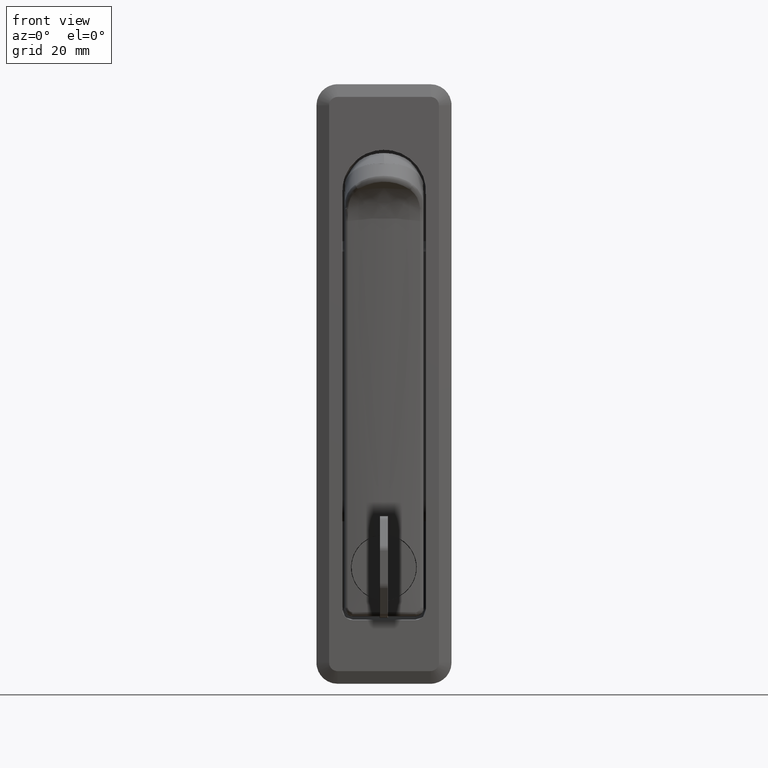
[diagram: clean part render]
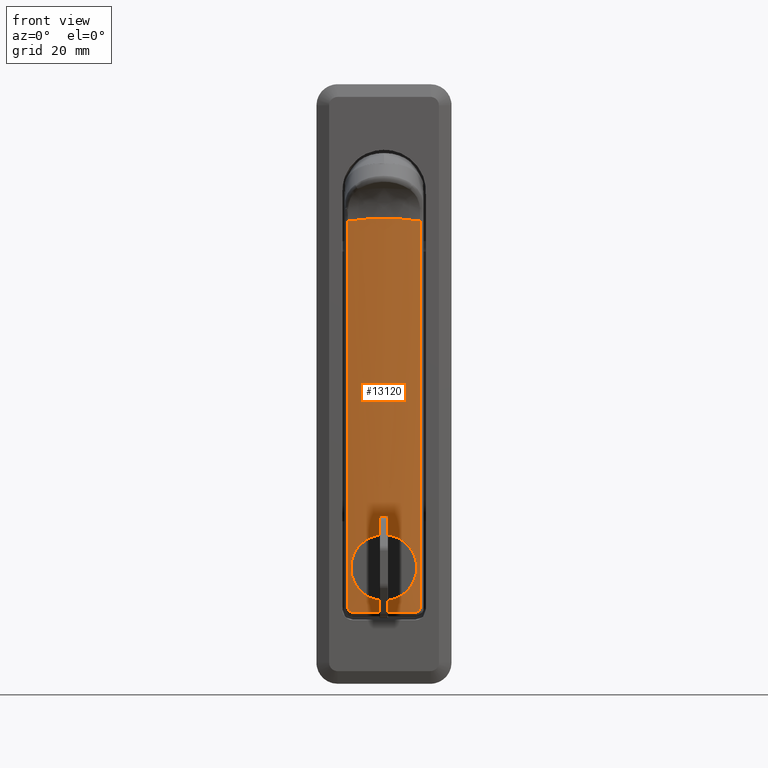
[diagram: same view with one face highlighted and labeled with its STEP entity id]
A machine part, front view. The second image highlights one B-rep face of the part: STEP entity #13120.
In plain terms, the highlighted face is a freeform B-spline surface patch.
Its self-contained STEP definition (entity closure, byte-faithful):
#8791=CARTESIAN_POINT('',(-3.484622368265870,7.847327941141425,-89.204189128046096));
#8792=VERTEX_POINT('',#8791);
#8798=CARTESIAN_POINT('',(-3.999979489759161,0.047630900839474,-96.799999640215958));
#8799=VERTEX_POINT('',#8798);
#8800=CARTESIAN_POINT('',(-3.999979489759161,0.047630900839474,-96.799999640215958));
#8801=CARTESIAN_POINT('',(-3.999575476099300,0.556918790600103,-96.800154324691647));
#8802=CARTESIAN_POINT('',(-3.992689937410454,1.063465663019250,-96.750910845993076));
#8803=CARTESIAN_POINT('',(-3.976237598259020,1.693139855598237,-96.626045773703353));
#8804=CARTESIAN_POINT('',(-3.972543774229130,1.819195516857935,-96.597791983833659));
#8805=CARTESIAN_POINT('',(-3.964466810858760,2.068385790896737,-96.535423971928125));
#8806=CARTESIAN_POINT('',(-3.960079643898423,2.191748797807247,-96.501280259332503));
#8807=CARTESIAN_POINT('',(-3.945936746043362,2.558211175732474,-96.390132116574534));
#8808=CARTESIAN_POINT('',(-3.924463487981357,3.037173729923115,-96.218730780905332));
#8809=CARTESIAN_POINT('',(-3.898422411084221,3.497138854994351,-96.001597975587373));
#8810=CARTESIAN_POINT('',(-3.877428107797999,3.834898998733452,-95.821350493473361));
#8811=CARTESIAN_POINT('',(-3.870186135866973,3.946281299804413,-95.758363157938263));
#8812=CARTESIAN_POINT('',(-3.855257344717984,4.166595156451687,-95.626471497187680));
#8813=CARTESIAN_POINT('',(-3.847567375594058,4.275541436238399,-95.557530275916037));
#8814=CARTESIAN_POINT('',(-3.808566166796603,4.808133908789353,-95.201828098744954));
#8815=CARTESIAN_POINT('',(-3.775279927959337,5.200651512762677,-94.879563312174668));
#8816=CARTESIAN_POINT('',(-3.725044630588524,5.740386245080254,-94.340797507818834));
#8817=CARTESIAN_POINT('',(-3.708246989227406,5.912064933820499,-94.151913993550068));
#8818=CARTESIAN_POINT('',(-3.683334426995745,6.156843166060795,-93.854169987714641));
#8819=CARTESIAN_POINT('',(-3.675100938675703,6.236074241721129,-93.752772461976377));
#8820=CARTESIAN_POINT('',(-3.658962882622657,6.388619934873823,-93.547335200532743));
#8821=CARTESIAN_POINT('',(-3.651038741802410,6.462127610004147,-93.443063732551437));
#8822=CARTESIAN_POINT('',(-3.612272791295083,6.816051968648603,-92.914052212612731));
#8823=CARTESIAN_POINT('',(-3.583992960197298,7.056020995094870,-92.466569936056061));
#8824=CARTESIAN_POINT('',(-3.554115930381062,7.301391551336029,-91.876395120361849));
#8825=CARTESIAN_POINT('',(-3.548414504929670,7.347711293669010,-91.756805174208836));
#8826=CARTESIAN_POINT('',(-3.537613745501453,7.434722705123113,-91.514445268320529));
#8827=CARTESIAN_POINT('',(-3.532545584411023,7.475163337545031,-91.392347357900903));
#8828=CARTESIAN_POINT('',(-3.518440927702450,7.586929604632837,-91.024904121282731));
#8829=CARTESIAN_POINT('',(-3.510474714073284,7.648961577755901,-90.777751556230172));
#8830=CARTESIAN_POINT('',(-3.497584055682651,7.748596219348340,-90.279153295335803));
#8831=CARTESIAN_POINT('',(-3.492659360202747,7.786198039713499,-90.027707458349354));
#8832=CARTESIAN_POINT('',(-3.486866519044244,7.830316079353080,-89.585357158971050));
#8833=CARTESIAN_POINT('',(-3.485282819211837,7.842324898271132,-89.395340216827378));
#8834=CARTESIAN_POINT('',(-3.484622368265870,7.847327941141425,-89.204189128046096));
#8835=B_SPLINE_CURVE_WITH_KNOTS('',3,(#8800,#8801,#8802,#8803,#8804,#8805,#8806,#8807,#8808,#8809,#8810,#8811,#8812,#8813,#8814,#8815,#8816,#8817,#8818,#8819,#8820,#8821,#8822,#8823,#8824,#8825,#8826,#8827,#8828,#8829,#8830,#8831,#8832,#8833,#8834),.UNSPECIFIED.,.F.,.U.,(4,2,2,2,1,2,2,2,2,2,2,2,2,2,2,2,2,4),(0.500000000000026,0.531250000000025,0.539062500000025,0.546875000000024,0.562500000000024,0.578125000000023,0.585937500000023,0.593750000000022,0.625000000000021,0.640625000000021,0.648437500000021,0.656250000000022,0.687500000000023,0.695312500000022,0.703125000000022,0.718750000000022,0.734375000000022,0.746003316946506),.UNSPECIFIED.);
#8836=EDGE_CURVE('',#8799,#8792,#8835,.T.);
#8838=CARTESIAN_POINT('',(-3.497720458881190,-7.747336529952283,-88.795819558683505));
#8839=VERTEX_POINT('',#8838);
#8840=CARTESIAN_POINT('',(-3.497720458881190,-7.747336529952283,-88.795819558683505));
#8841=CARTESIAN_POINT('',(-3.497493130825949,-7.749071434013142,-88.862478378826822));
#8842=CARTESIAN_POINT('',(-3.497376948249235,-7.749954900577907,-88.929186106810519));
#8843=CARTESIAN_POINT('',(-3.497355169894051,-7.750122287916641,-89.250582654423496));
#8844=CARTESIAN_POINT('',(-3.498962105463567,-7.737817609552157,-89.505937138826937));
#8845=CARTESIAN_POINT('',(-3.503035316371665,-7.706393610760752,-89.826051571737082));
#8846=CARTESIAN_POINT('',(-3.503954673233525,-7.699293228989120,-89.890203676987468));
#8847=CARTESIAN_POINT('',(-3.505989923611024,-7.683547538880779,-90.017964762992264));
#8848=CARTESIAN_POINT('',(-3.509338517416648,-7.657603993478316,-90.208929379760733));
#8849=CARTESIAN_POINT('',(-3.513555058924827,-7.624767285443698,-90.397887109627959));
#8850=CARTESIAN_POINT('',(-3.529455792817234,-7.500244596115176,-91.023361401460221));
#8851=CARTESIAN_POINT('',(-3.548082660045375,-7.352844969841165,-91.509833548552606));
#8852=CARTESIAN_POINT('',(-3.577446366957982,-7.108446875056539,-92.100464778605627));
#8853=CARTESIAN_POINT('',(-3.583622968857662,-7.056532637757919,-92.217710286900243));
#8854=CARTESIAN_POINT('',(-3.596549926986584,-6.946511361232626,-92.450405603985502));
#8855=CARTESIAN_POINT('',(-3.603266061493807,-6.888692148510928,-92.565224875255311));
#8856=CARTESIAN_POINT('',(-3.623997797630889,-6.707708956543892,-92.903685039019294));
#8857=CARTESIAN_POINT('',(-3.653265629900107,-6.445758949179145,-93.340296703767635));
#8858=CARTESIAN_POINT('',(-3.684874812757229,-6.143431352364988,-93.748273108999115));
#8859=CARTESIAN_POINT('',(-3.709123076059074,-5.901435531156156,-94.043465486964848));
#8860=CARTESIAN_POINT('',(-3.717296051370558,-5.818224010595815,-94.140061411817243));
#8861=CARTESIAN_POINT('',(-3.733765250613307,-5.646633635710159,-94.329601649986770));
#8862=CARTESIAN_POINT('',(-3.742070296081129,-5.558158585848290,-94.422642047528910));
#8863=CARTESIAN_POINT('',(-3.783663513825066,-5.103595918524801,-94.877505019362474));
#8864=CARTESIAN_POINT('',(-3.816324415295453,-4.710218373201758,-95.199855220472017));
#8865=CARTESIAN_POINT('',(-3.861687162887850,-4.077125847223304,-95.623540372503484));
#8866=CARTESIAN_POINT('',(-3.876205765428448,-3.858870657310274,-95.754720532374151));
#8867=CARTESIAN_POINT('',(-3.896741057954369,-3.520366262060924,-95.936054520841836));
#8868=CARTESIAN_POINT('',(-3.903393332856608,-3.405408491996868,-95.994045704581936));
#8869=CARTESIAN_POINT('',(-3.916155437823769,-3.172957571669399,-96.104158646100913));
#8870=CARTESIAN_POINT('',(-3.922247012695894,-3.055825549119328,-96.156127385552139));
#8871=CARTESIAN_POINT('',(-3.951175455810703,-2.465717398766893,-96.400834291416146));
#8872=CARTESIAN_POINT('',(-3.969423078308126,-1.979523016220165,-96.548595702349971));
#8873=CARTESIAN_POINT('',(-3.984844806175739,-1.354196998930587,-96.673623344311451));
#8874=CARTESIAN_POINT('',(-3.987559691696342,-1.228244803755599,-96.695618171851564));
#8875=CARTESIAN_POINT('',(-3.992217697001291,-0.974535575965874,-96.733484103166788));
#8876=CARTESIAN_POINT('',(-3.994164550405941,-0.846415181881548,-96.749386396605374));
#8877=CARTESIAN_POINT('',(-3.998763416026973,-0.462346805270546,-96.787406657543670));
#8878=CARTESIAN_POINT('',(-4.000181638511436,-0.207012912266040,-96.799922300914645));
#8879=CARTESIAN_POINT('',(-3.999979489759161,0.047630900839474,-96.799999640215958));
#8880=B_SPLINE_CURVE_WITH_KNOTS('',3,(#8840,#8841,#8842,#8843,#8844,#8845,#8846,#8847,#8848,#8849,#8850,#8851,#8852,#8853,#8854,#8855,#8856,#8857,#8858,#8859,#8860,#8861,#8862,#8863,#8864,#8865,#8866,#8867,#8868,#8869,#8870,#8871,#8872,#8873,#8874,#8875,#8876,#8877,#8878,#8879),.UNSPECIFIED.,.F.,.U.,(4,2,2,2,1,2,2,2,2,1,2,2,2,2,2,2,2,2,2,2,4),(0.245903747179580,0.250000000000030,0.265625000000031,0.269531250000032,0.273437500000032,0.281250000000033,0.312500000000033,0.320312500000032,0.328125000000032,0.343750000000031,0.359375000000031,0.367187500000031,0.375000000000031,0.406250000000029,0.421875000000029,0.429687500000028,0.437500000000028,0.468750000000027,0.476562500000027,0.484375000000026,0.500000000000026),.UNSPECIFIED.);
#8881=EDGE_CURVE('',#8839,#8799,#8880,.T.);
#8957=CARTESIAN_POINT('',(-3.999977562281145,0.050000000000015,-81.199999999999989));
#8958=VERTEX_POINT('',#8957);
#8959=CARTESIAN_POINT('',(-3.999977562281145,0.050000000000015,-81.199999999999989));
#8960=CARTESIAN_POINT('',(-4.000407470347692,-0.465889182496813,-81.200000008282615));
#8961=CARTESIAN_POINT('',(-3.994182523514549,-0.973054960242572,-81.250676128413645));
#8962=CARTESIAN_POINT('',(-3.975822210334713,-1.721277192110748,-81.399523816613325));
#8963=CARTESIAN_POINT('',(-3.968197176636839,-1.968581471022908,-81.461369340953325));
#8964=CARTESIAN_POINT('',(-3.954620125261481,-2.336315735190987,-81.572894517522826));
#8965=CARTESIAN_POINT('',(-3.949726734464367,-2.458610982674740,-81.613294299747679));
#8966=CARTESIAN_POINT('',(-3.939299075002887,-2.700912432715299,-81.700066513966490));
#8967=CARTESIAN_POINT('',(-3.933784978479890,-2.820493206319800,-81.746270760267365));
#8968=CARTESIAN_POINT('',(-3.904843779469896,-3.410713824558411,-81.991094762460065));
#8969=CARTESIAN_POINT('',(-3.877308412743851,-3.858523282329872,-82.230724838386067));
#8970=CARTESIAN_POINT('',(-3.839407655098960,-4.388205567496303,-82.584508788938720));
#8971=CARTESIAN_POINT('',(-3.831653387520570,-4.492624424209927,-82.658002636551586));
#8972=CARTESIAN_POINT('',(-3.815847695129808,-4.698380815603931,-82.810553885249362));
#8973=CARTESIAN_POINT('',(-3.807773337031291,-4.799992359088697,-82.889843718735690));
#8974=CARTESIAN_POINT('',(-3.783389465743470,-5.097621247808342,-83.134179258645375));
#8975=CARTESIAN_POINT('',(-3.766922988599670,-5.286513542208652,-83.305603773205291));
#8976=CARTESIAN_POINT('',(-3.717614351211520,-5.825502534746413,-83.844739750697229));
#8977=CARTESIAN_POINT('',(-3.684854635999316,-6.148178368504831,-84.237073233149829));
#8978=CARTESIAN_POINT('',(-3.646421082963382,-6.504561427376175,-84.769860913518286));
#8979=CARTESIAN_POINT('',(-3.638843967338877,-6.573615555012179,-84.878824547241436));
#8980=CARTESIAN_POINT('',(-3.624153993933055,-6.705548988891827,-85.098856134296810));
#8981=CARTESIAN_POINT('',(-3.617026522844245,-6.768569276720306,-85.210107508552611));
#8982=CARTESIAN_POINT('',(-3.596363210757144,-6.948946285528400,-85.547507031022619));
#8983=CARTESIAN_POINT('',(-3.570730058053409,-7.166333376583185,-86.007076949509255));
#8984=CARTESIAN_POINT('',(-3.549622780427670,-7.338101094402040,-86.485834247994646));
#8985=CARTESIAN_POINT('',(-3.535748232996119,-7.449548505726667,-86.852222920310695));
#8986=CARTESIAN_POINT('',(-3.531449492299458,-7.483796043792808,-86.975574763146753));
#8987=CARTESIAN_POINT('',(-3.523548916708182,-7.546376772908197,-87.224771424254243));
#8988=CARTESIAN_POINT('',(-3.519944679567929,-7.574728076710775,-87.350797793692010));
#8989=CARTESIAN_POINT('',(-3.505618364017040,-7.686922096863610,-87.914216212057426));
#8990=CARTESIAN_POINT('',(-3.499227399201893,-7.735836514982460,-88.353943315817233));
#8991=CARTESIAN_POINT('',(-3.497720458881190,-7.747336529952283,-88.795819558683505));
#8992=B_SPLINE_CURVE_WITH_KNOTS('',3,(#8959,#8960,#8961,#8962,#8963,#8964,#8965,#8966,#8967,#8968,#8969,#8970,#8971,#8972,#8973,#8974,#8975,#8976,#8977,#8978,#8979,#8980,#8981,#8982,#8983,#8984,#8985,#8986,#8987,#8988,#8989,#8990,#8991),.UNSPECIFIED.,.F.,.U.,(4,2,2,2,2,2,2,2,2,2,2,2,1,2,2,2,4),(0.0,0.031250000000004,0.046875000000006,0.054687500000007,0.062500000000008,0.093750000000011,0.101562500000012,0.109375000000013,0.125000000000014,0.156250000000017,0.164062500000018,0.171875000000019,0.187500000000021,0.203125000000024,0.210937500000025,0.218750000000025,0.245903747179580),.UNSPECIFIED.);
#8993=EDGE_CURVE('',#8958,#8839,#8992,.T.);
#8995=CARTESIAN_POINT('',(-3.484622368265870,7.847327941141425,-89.204189128046096));
#8996=CARTESIAN_POINT('',(-3.484395298141918,7.849047508840481,-89.138489997623182));
#8997=CARTESIAN_POINT('',(-3.484277292666548,7.849939473762462,-89.072656888764229));
#8998=CARTESIAN_POINT('',(-3.484211078740809,7.850438863981117,-88.490945366544011));
#8999=CARTESIAN_POINT('',(-3.490899656608680,7.800224769843696,-87.983775289571568));
#9000=CARTESIAN_POINT('',(-3.510081156581953,7.652018585951613,-87.235353345366974));
#9001=CARTESIAN_POINT('',(-3.518000545879657,7.590378468803096,-86.987949988498158));
#9002=CARTESIAN_POINT('',(-3.532046046951913,7.479138128149434,-86.620018741229359));
#9003=CARTESIAN_POINT('',(-3.537102318224593,7.438814081985955,-86.497609018614895));
#9004=CARTESIAN_POINT('',(-3.547849811179314,7.352283296298054,-86.255333663362038));
#9005=CARTESIAN_POINT('',(-3.553526079956326,7.306197966939605,-86.135754465860444));
#9006=CARTESIAN_POINT('',(-3.583286844819997,7.061954278617034,-85.545488265686799));
#9007=CARTESIAN_POINT('',(-3.611505143950054,6.822743337185198,-85.097472750104188));
#9008=CARTESIAN_POINT('',(-3.650256323153750,6.469343202427075,-84.567364078867271));
#9009=CARTESIAN_POINT('',(-3.658180555860868,6.395919054630571,-84.462851425115346));
#9010=CARTESIAN_POINT('',(-3.674325221397581,6.243490587593445,-84.256891244543695));
#9011=CARTESIAN_POINT('',(-3.682568272509894,6.164260354518611,-84.155180947825244));
#9012=CARTESIAN_POINT('',(-3.707428334723188,5.920310150383960,-83.857502007675322));
#9013=CARTESIAN_POINT('',(-3.724203359977935,5.749118273579449,-83.668528239355695));
#9014=CARTESIAN_POINT('',(-3.774409798221642,5.210585965341226,-83.129179610849761));
#9015=CARTESIAN_POINT('',(-3.807729814610515,4.818530990732159,-82.806110498193362));
#9016=CARTESIAN_POINT('',(-3.846829702203508,4.285853539227223,-82.449123002648733));
#9017=CARTESIAN_POINT('',(-3.854534774673479,4.176954060405320,-82.379978361816043));
#9018=CARTESIAN_POINT('',(-3.869468379433190,3.957146961401899,-82.247915932903865));
#9019=CARTESIAN_POINT('',(-3.876715745484884,3.845997823297710,-82.184821987461547));
#9020=CARTESIAN_POINT('',(-3.897734443123361,3.508873760595507,-82.004201088815620));
#9021=CARTESIAN_POINT('',(-3.923830006868113,3.049587924716361,-81.786427835446688));
#9022=CARTESIAN_POINT('',(-3.945392234191971,2.570932864276947,-81.614195017845105));
#9023=CARTESIAN_POINT('',(-3.959610430679186,2.204544964111618,-81.502384373869717));
#9024=CARTESIAN_POINT('',(-3.964024115374084,2.081180697571231,-81.468013370002780));
#9025=CARTESIAN_POINT('',(-3.972156089116082,1.831932156398971,-81.405183640020283));
#9026=CARTESIAN_POINT('',(-3.975873846451839,1.705981801009581,-81.376730217725950));
#9027=CARTESIAN_POINT('',(-3.992472217385018,1.075849492294196,-81.250682362981536));
#9028=CARTESIAN_POINT('',(-3.999547927183529,0.565889467350241,-81.199999998182761));
#9029=CARTESIAN_POINT('',(-3.999977562281145,0.050000000000015,-81.199999999999989));
#9030=B_SPLINE_CURVE_WITH_KNOTS('',3,(#8995,#8996,#8997,#8998,#8999,#9000,#9001,#9002,#9003,#9004,#9005,#9006,#9007,#9008,#9009,#9010,#9011,#9012,#9013,#9014,#9015,#9016,#9017,#9018,#9019,#9020,#9021,#9022,#9023,#9024,#9025,#9026,#9027,#9028,#9029),.UNSPECIFIED.,.F.,.U.,(4,2,2,2,2,2,2,2,2,2,2,2,2,1,2,2,2,4),(0.746003316946506,0.750000000000023,0.781250000000022,0.796875000000022,0.804687500000022,0.812500000000022,0.843750000000019,0.851562500000018,0.859375000000018,0.875000000000016,0.906250000000012,0.914062500000011,0.921875000000010,0.937500000000008,0.953125000000006,0.960937500000005,0.968750000000004,1.0),.UNSPECIFIED.);
#9031=EDGE_CURVE('',#8792,#8958,#9030,.T.);
#10865=CARTESIAN_POINT('',(-3.526194290382000,-7.525423728813521,-99.500000291944104));
#10866=VERTEX_POINT('',#10865);
#10914=CARTESIAN_POINT('',(-3.388784084128945,-8.542372881355940,-98.500000294231413));
#10915=VERTEX_POINT('',#10914);
#10929=CARTESIAN_POINT('',(-3.526194290382000,-7.525423728813521,-99.500000291944104));
#10930=CARTESIAN_POINT('',(-3.517808090479813,-7.591758675014477,-99.500000292083683));
#10931=CARTESIAN_POINT('',(-3.509400447826204,-7.657372278979276,-99.493678452193308));
#10932=CARTESIAN_POINT('',(-3.496766167899458,-7.754720843381748,-99.474791859541725));
#10933=CARTESIAN_POINT('',(-3.492548282343361,-7.787009708503376,-99.466894290768138));
#10934=CARTESIAN_POINT('',(-3.484256580611805,-7.850098114407822,-99.448219872924795));
#10935=CARTESIAN_POINT('',(-3.476071266873122,-7.911988856426888,-99.426620249087819));
#10936=CARTESIAN_POINT('',(-3.468106015544056,-7.971514406624974,-99.399240617599048));
#10937=CARTESIAN_POINT('',(-3.460258687489028,-8.029838843531195,-99.368923748181331));
#10938=CARTESIAN_POINT('',(-3.456378281275414,-8.058515794952660,-99.352220411769267));
#10939=CARTESIAN_POINT('',(-3.445043578638777,-8.141851563926894,-99.298039485498464));
#10940=CARTESIAN_POINT('',(-3.437987405478388,-8.193151093071199,-99.257047816432575));
#10941=CARTESIAN_POINT('',(-3.428188828549169,-8.263821601403732,-99.188369503624386));
#10942=CARTESIAN_POINT('',(-3.425054492952110,-8.286324591998906,-99.164269813218382));
#10943=CARTESIAN_POINT('',(-3.419067442982683,-8.329147673068354,-99.113569140585980));
#10944=CARTESIAN_POINT('',(-3.416226892842836,-8.349380069617087,-99.087040006633515));
#10945=CARTESIAN_POINT('',(-3.408328240948823,-8.405460755588628,-99.005418645009314));
#10946=CARTESIAN_POINT('',(-3.403823511497380,-8.437194468206855,-98.947790085725856));
#10947=CARTESIAN_POINT('',(-3.398270236325043,-8.476170984622625,-98.856440548145500));
#10948=CARTESIAN_POINT('',(-3.396613875795603,-8.487765867098627,-98.824979204725736));
#10949=CARTESIAN_POINT('',(-3.393782529870055,-8.507555825771998,-98.761538514238168));
#10950=CARTESIAN_POINT('',(-3.392602079429020,-8.515789582749566,-98.729526919919579));
#10951=CARTESIAN_POINT('',(-3.389757593024468,-8.535612497862767,-98.632636702652690));
#10952=CARTESIAN_POINT('',(-3.388784084128950,-8.542372881355883,-98.566911321256015));
#10953=CARTESIAN_POINT('',(-3.388784084128950,-8.542372881355888,-98.500000294231413));
#10954=B_SPLINE_CURVE_WITH_KNOTS('',3,(#10929,#10930,#10931,#10932,#10933,#10934,#10935,#10936,#10937,#10938,#10939,#10940,#10941,#10942,#10943,#10944,#10945,#10946,#10947,#10948,#10949,#10950,#10951,#10952,#10953),.UNSPECIFIED.,.F.,.U.,(4,2,2,1,2,2,2,2,2,2,2,2,4),(0.0,0.124999999999995,0.187499999999993,0.249999999999991,0.312499999999985,0.374999999999980,0.499999999999969,0.562499999999964,0.624999999999958,0.749999999999948,0.812499999999954,0.874999999999961,1.0),.UNSPECIFIED.);
#10955=EDGE_CURVE('',#10866,#10915,#10954,.T.);
#10976=CARTESIAN_POINT('',(-3.388784084128940,-8.542372881355920,-6.926287130361851));
#10977=VERTEX_POINT('',#10976);
#10991=CARTESIAN_POINT('',(-3.388784084128945,-8.542372881355940,-98.500000294231413));
#10992=CARTESIAN_POINT('',(-3.388784084128940,-8.542372881355920,-6.926287130361851));
#10993=QUASI_UNIFORM_CURVE('',1,(#10991,#10992),.UNSPECIFIED.,.F.,.U.);
#10994=EDGE_CURVE('',#10915,#10977,#10993,.T.);
#11022=CARTESIAN_POINT('',(-3.526194290381995,7.525423728813570,-99.500000291948496));
#11023=VERTEX_POINT('',#11022);
#11053=CARTESIAN_POINT('',(-3.526194290381995,7.525423728813570,-99.500000291948496));
#11054=CARTESIAN_POINT('',(-3.684757539852614,6.271186440677979,-99.500000289264392));
#11055=CARTESIAN_POINT('',(-3.803088144389838,5.016949152542388,-99.500000287261358));
#11056=CARTESIAN_POINT('',(-3.960709512140426,2.508474576271207,-99.500000284593156));
#11057=CARTESIAN_POINT('',(-4.039287279095778,2.341877E-014,-99.500000283263049));
#11058=CARTESIAN_POINT('',(-3.960709512140425,-2.508474576271155,-99.500000284593185));
#11059=CARTESIAN_POINT('',(-3.803088144389839,-5.016949152542336,-99.500000287261358));
#11060=CARTESIAN_POINT('',(-3.684757539852613,-6.271186440677930,-99.500000289264392));
#11061=CARTESIAN_POINT('',(-3.526194290382000,-7.525423728813521,-99.500000291944104));
#11062=B_SPLINE_CURVE_WITH_KNOTS('',3,(#11053,#11054,#11055,#11056,#11057,#11058,#11059,#11060,#11061),.UNSPECIFIED.,.F.,.U.,(4,2,1,2,4),(0.0,0.250000000000000,0.500000000000000,0.750000000000000,1.0),.UNSPECIFIED.);
#11063=EDGE_CURVE('',#11023,#10866,#11062,.T.);
#11257=CARTESIAN_POINT('',(-3.388784084128945,8.542372881355940,-98.500000294231313));
#11258=VERTEX_POINT('',#11257);
#11303=CARTESIAN_POINT('',(-3.388784084128945,8.542372881355940,-98.500000294231313));
#11304=CARTESIAN_POINT('',(-3.388784084128944,8.542372881355945,-98.566919075201412));
#11305=CARTESIAN_POINT('',(-3.389758029182555,8.535609880814498,-98.633089799545573));
#11306=CARTESIAN_POINT('',(-3.393625675872213,8.508655820061970,-98.763946186675597));
#11307=CARTESIAN_POINT('',(-3.396482515539173,8.488719452528875,-98.827178956703420));
#11308=CARTESIAN_POINT('',(-3.402014806000786,8.449888597997637,-98.917963091797901));
#11309=CARTESIAN_POINT('',(-3.404069836801254,8.435434599871055,-98.947596138991415));
#11310=CARTESIAN_POINT('',(-3.408601050111993,8.403463055095479,-99.005588159164205));
#11311=CARTESIAN_POINT('',(-3.411091929782004,8.385840786660783,-99.034078200759382));
#11312=CARTESIAN_POINT('',(-3.419036477992668,8.329427102922670,-99.115862992127504));
#11313=CARTESIAN_POINT('',(-3.424982433208204,8.286950142470554,-99.165957631320452));
#11314=CARTESIAN_POINT('',(-3.438069931488625,8.192552876141207,-99.257563785072080));
#11315=CARTESIAN_POINT('',(-3.445284040905686,8.140092726116865,-99.299303239812289));
#11316=CARTESIAN_POINT('',(-3.460277094893854,8.029841346133129,-99.370739990983083));
#11317=CARTESIAN_POINT('',(-3.468104760704344,7.971708157608776,-99.400908251902294));
#11318=CARTESIAN_POINT('',(-3.480304726384512,7.879981611527625,-99.437816630202718));
#11319=CARTESIAN_POINT('',(-3.484465556010476,7.848514696289320,-99.448744361580538));
#11320=CARTESIAN_POINT('',(-3.492772156106123,7.785299389044492,-99.467341776053175));
#11321=CARTESIAN_POINT('',(-3.496934400297381,7.753428638557370,-99.475074005631853));
#11322=CARTESIAN_POINT('',(-3.509441942556902,7.657044281321492,-99.493677748818484));
#11323=CARTESIAN_POINT('',(-3.517807180294481,7.591765874591760,-99.500000292083698));
#11324=CARTESIAN_POINT('',(-3.526194290381995,7.525423728813570,-99.500000291948496));
#11325=B_SPLINE_CURVE_WITH_KNOTS('',3,(#11303,#11304,#11305,#11306,#11307,#11308,#11309,#11310,#11311,#11312,#11313,#11314,#11315,#11316,#11317,#11318,#11319,#11320,#11321,#11322,#11323,#11324),.UNSPECIFIED.,.F.,.U.,(4,2,2,2,2,2,2,2,2,2,4),(0.0,0.124999999999998,0.249999999999996,0.312499999999994,0.374999999999992,0.499999999999989,0.624999999999985,0.749999999999982,0.812499999999987,0.874999999999993,1.0),.UNSPECIFIED.);
#11326=EDGE_CURVE('',#11258,#11023,#11325,.T.);
#11515=CARTESIAN_POINT('',(-3.388784084128940,8.542372881355929,-6.926287130361851));
#11516=VERTEX_POINT('',#11515);
#11538=CARTESIAN_POINT('',(-3.388784084128940,8.542372881355929,-6.926287130361851));
#11539=CARTESIAN_POINT('',(-3.388784084128945,8.542372881355940,-98.500000294231313));
#11540=QUASI_UNIFORM_CURVE('',1,(#11538,#11539),.UNSPECIFIED.,.F.,.U.);
#11541=EDGE_CURVE('',#11516,#11258,#11540,.T.);
#12742=CARTESIAN_POINT('',(-3.388784084128940,-8.542372881355920,-6.926287130361851));
#12743=CARTESIAN_POINT('',(-4.617503169696002,3.989864E-014,-5.492782457589455));
#12744=CARTESIAN_POINT('',(-3.388784084128940,8.542372881355929,-6.926287130361851));
#12752=(BOUNDED_CURVE()B_SPLINE_CURVE(2,(#12742,#12743,#12744),.UNSPECIFIED.,.F.,.U.)CURVE()GEOMETRIC_REPRESENTATION_ITEM()QUASI_UNIFORM_CURVE()RATIONAL_B_SPLINE_CURVE((1.0,0.989813094808515,1.0))REPRESENTATION_ITEM(''));
#12753=EDGE_CURVE('',#10977,#11516,#12752,.T.);
#13092=CARTESIAN_POINT('',(-3.261559869606809,9.384419623218806,-3.881034326516859));
#13093=CARTESIAN_POINT('',(-3.261559869606809,9.384419623218806,-101.890474441084270));
#13094=CARTESIAN_POINT('',(-4.747850754152198,-0.001341261214550,-3.881034326516858));
#13095=CARTESIAN_POINT('',(-4.747850754152198,-0.001341261214550,-101.890474441084320));
#13096=CARTESIAN_POINT('',(-3.261145411727766,-9.387036504405041,-3.881034326516859));
#13097=CARTESIAN_POINT('',(-3.261145411727766,-9.387036504405041,-101.890474441084320));
#13105=(BOUNDED_SURFACE()B_SPLINE_SURFACE(1,2,((#13092,#13094,#13096),(#13093,#13095,#13097)),.UNSPECIFIED.,.F.,.F.,.U.)B_SPLINE_SURFACE_WITH_KNOTS((2,2),(3,3),(0.0,98.009440114567440),(0.0,18.887704666200658),.UNSPECIFIED.)GEOMETRIC_REPRESENTATION_ITEM()RATIONAL_B_SPLINE_SURFACE(((0.997822045175840,0.983936689821574,0.994581948654840),(0.997822045175840,0.983936689821574,0.994581948654840)))REPRESENTATION_ITEM('')SURFACE());
#13106=ORIENTED_EDGE('',*,*,#12753,.T.);
#13107=ORIENTED_EDGE('',*,*,#11541,.T.);
#13108=ORIENTED_EDGE('',*,*,#11326,.T.);
#13109=ORIENTED_EDGE('',*,*,#11063,.T.);
#13110=ORIENTED_EDGE('',*,*,#10955,.T.);
#13111=ORIENTED_EDGE('',*,*,#10994,.T.);
#13112=EDGE_LOOP('',(#13106,#13107,#13108,#13109,#13110,#13111));
#13113=FACE_OUTER_BOUND('',#13112,.T.);
#13114=ORIENTED_EDGE('',*,*,#8993,.T.);
#13115=ORIENTED_EDGE('',*,*,#8881,.T.);
#13116=ORIENTED_EDGE('',*,*,#8836,.T.);
#13117=ORIENTED_EDGE('',*,*,#9031,.T.);
#13118=EDGE_LOOP('',(#13114,#13115,#13116,#13117));
#13119=FACE_BOUND('',#13118,.T.);
#13120=ADVANCED_FACE('',(#13113,#13119),#13105,.T.);